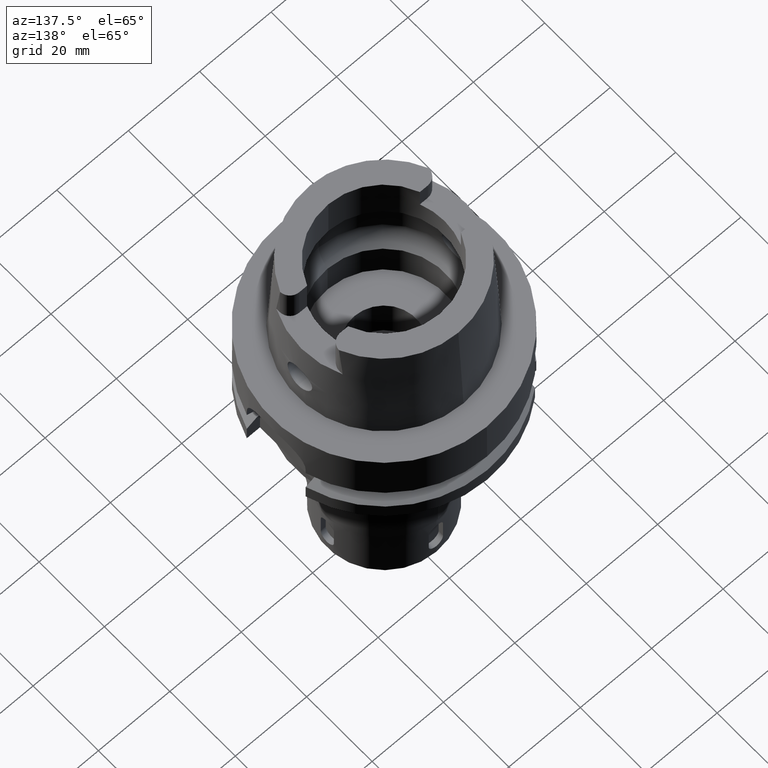
[diagram: clean part render]
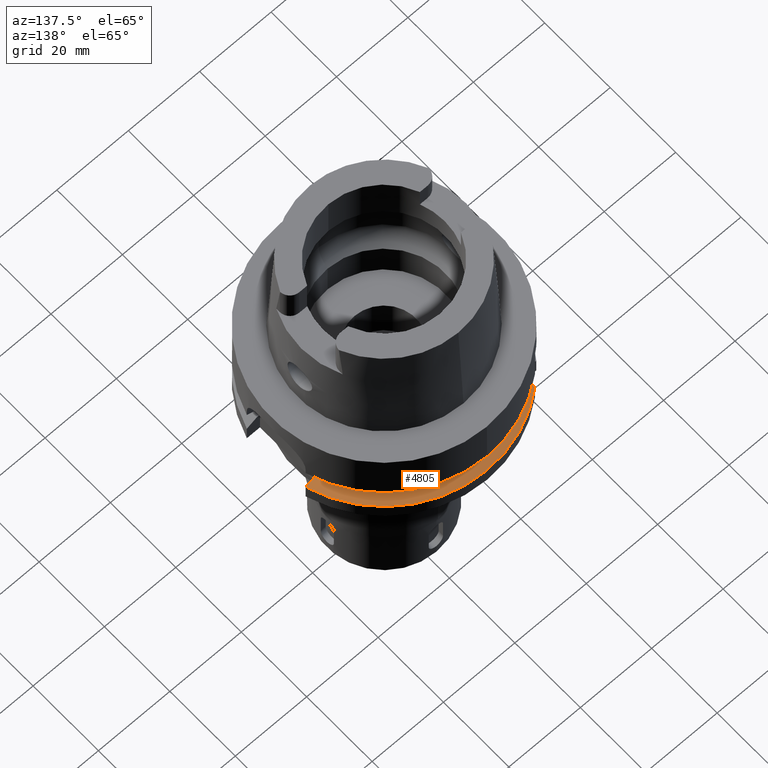
[diagram: same view with one face highlighted and labeled with its STEP entity id]
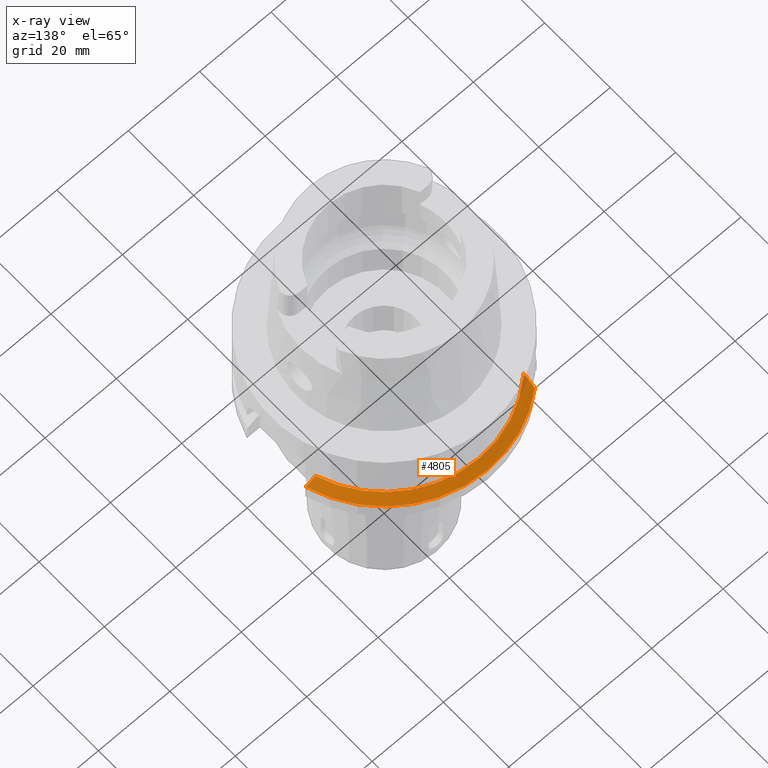
[diagram: x-ray of the same camera — body ghosted, the highlighted face saturated]
A machine part, auxiliary view. The second image highlights one B-rep face of the part: STEP entity #4805.
The next image is the same camera in x-ray: the body ghosted, the highlighted face saturated — about 2% of this face is hidden behind the body in this view.
In plain terms, the highlighted conical surface has half-angle 60 deg.
Its self-contained STEP definition (entity closure, byte-faithful):
#1659=CARTESIAN_POINT('',(2.746035048671E1,9.000000214430E0,-1.9875E1));
#1660=CARTESIAN_POINT('',(2.776361594294E1,9.000000214430E0,-2.004138215022E1));
#1661=CARTESIAN_POINT('',(2.836990141064E1,8.999999992286E0,-2.037457251099E1));
#1662=CARTESIAN_POINT('',(2.927877116028E1,8.999999705355E0,-2.087538369855E1));
#1663=CARTESIAN_POINT('',(2.988424700162E1,9.000000692648E0,-2.121004212782E1));
#1664=CARTESIAN_POINT('',(3.018691748974E1,9.000000692648E0,-2.137750466150E1));
#1878=CARTESIAN_POINT('',(0.E0,0.E0,-1.9875E1));
#1879=DIRECTION('',(0.E0,0.E0,-1.E0));
#1880=DIRECTION('',(-6.920991112636E-1,7.218024800374E-1,0.E0));
#1881=AXIS2_PLACEMENT_3D('',#1878,#1879,#1880);
#1886=CARTESIAN_POINT('',(0.E0,0.E0,-1.9875E1));
#1887=DIRECTION('',(0.E0,0.E0,-1.E0));
#1888=DIRECTION('',(0.E0,1.E0,0.E0));
#1889=AXIS2_PLACEMENT_3D('',#1886,#1887,#1888);
#1932=CARTESIAN_POINT('',(-2.000000400464E1,2.085831983695E1,-1.9875E1));
#1933=CARTESIAN_POINT('',(-2.000000400464E1,2.123641296979E1,
-2.003256374412E1));
#1934=CARTESIAN_POINT('',(-1.999999996826E1,2.199801948806E1,
-2.035406374223E1));
#1935=CARTESIAN_POINT('',(-1.999999410412E1,2.315731121616E1,
-2.085504091638E1));
#1936=CARTESIAN_POINT('',(-2.000001377821E1,2.394128116253E1,
-2.120140686750E1));
#1937=CARTESIAN_POINT('',(-2.000001377821E1,2.433617572403E1,
-2.137754845250E1));
#1942=CARTESIAN_POINT('',(0.E0,0.E0,-2.137749907476E1));
#1943=DIRECTION('',(0.E0,0.E0,-1.E0));
#1944=DIRECTION('',(-6.349206349206E-1,7.725773665802E-1,0.E0));
#1945=AXIS2_PLACEMENT_3D('',#1942,#1943,#1944);
#1950=CARTESIAN_POINT('',(0.E0,0.E0,-2.137749907476E1));
#1951=DIRECTION('',(0.E0,0.E0,-1.E0));
#1952=DIRECTION('',(0.E0,1.E0,0.E0));
#1953=AXIS2_PLACEMENT_3D('',#1950,#1951,#1952);
#3238=CARTESIAN_POINT('',(-2.000001377821E1,2.433617572403E1,
-2.137754845250E1));
#3239=VERTEX_POINT('',#3238);
#3240=VERTEX_POINT('',#1932);
#3258=CARTESIAN_POINT('',(3.018691748974E1,9.000000692648E0,-2.137750466150E1));
#3259=VERTEX_POINT('',#3258);
#3260=CARTESIAN_POINT('',(0.E0,3.15E1,-2.137749907476E1));
#3261=VERTEX_POINT('',#3260);
#3306=VERTEX_POINT('',#1659);
#3307=CARTESIAN_POINT('',(2.111091848958E-14,2.889759526419E1,-1.9875E1));
#3308=VERTEX_POINT('',#3307);
#4792=CARTESIAN_POINT('',(0.E0,0.E0,-2.062624953738E1));
#4793=DIRECTION('',(0.E0,0.E0,-1.E0));
#4794=DIRECTION('',(0.E0,-1.E0,0.E0));
#4795=AXIS2_PLACEMENT_3D('',#4792,#4793,#4794);
#4796=CONICAL_SURFACE('',#4795,3.019879763210E1,6.E1);
#4797=ORIENTED_EDGE('',*,*,#4566,.T.);
#4798=ORIENTED_EDGE('',*,*,#4587,.T.);
#4799=ORIENTED_EDGE('',*,*,#4585,.T.);
#4800=ORIENTED_EDGE('',*,*,#4602,.F.);
#4801=ORIENTED_EDGE('',*,*,#4776,.F.);
#4802=ORIENTED_EDGE('',*,*,#4774,.F.);
#4803=EDGE_LOOP('',(#4797,#4798,#4799,#4800,#4801,#4802));
#4804=FACE_OUTER_BOUND('',#4803,.F.);
#1665=B_SPLINE_CURVE_WITH_KNOTS('',3,(#1659,#1660,#1661,#1662,#1663,#1664),
.UNSPECIFIED.,.F.,.F.,(4,1,1,4),(0.E0,3.333333333333E-1,6.666666666667E-1,1.E0),
.UNSPECIFIED.);
#1882=CIRCLE('',#1881,2.889759526419E1);
#1890=CIRCLE('',#1889,2.889759526419E1);
#1938=B_SPLINE_CURVE_WITH_KNOTS('',3,(#1932,#1933,#1934,#1935,#1936,#1937),
.UNSPECIFIED.,.F.,.F.,(4,1,1,4),(0.E0,3.333333333333E-1,6.666666666667E-1,1.E0),
.UNSPECIFIED.);
#1946=CIRCLE('',#1945,3.15E1);
#1954=CIRCLE('',#1953,3.15E1);
#4566=EDGE_CURVE('',#3240,#3239,#1938,.T.);
#4585=EDGE_CURVE('',#3261,#3259,#1954,.T.);
#4587=EDGE_CURVE('',#3239,#3261,#1946,.T.);
#4602=EDGE_CURVE('',#3306,#3259,#1665,.T.);
#4774=EDGE_CURVE('',#3240,#3308,#1882,.T.);
#4776=EDGE_CURVE('',#3308,#3306,#1890,.T.);
#4805=ADVANCED_FACE('',(#4804),#4796,.T.);